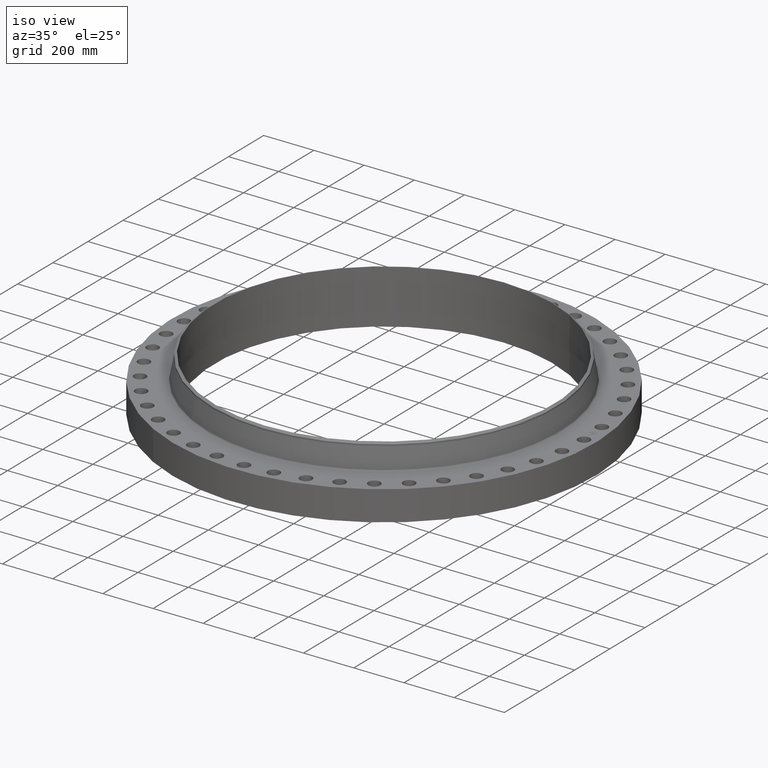
[diagram: clean part render]
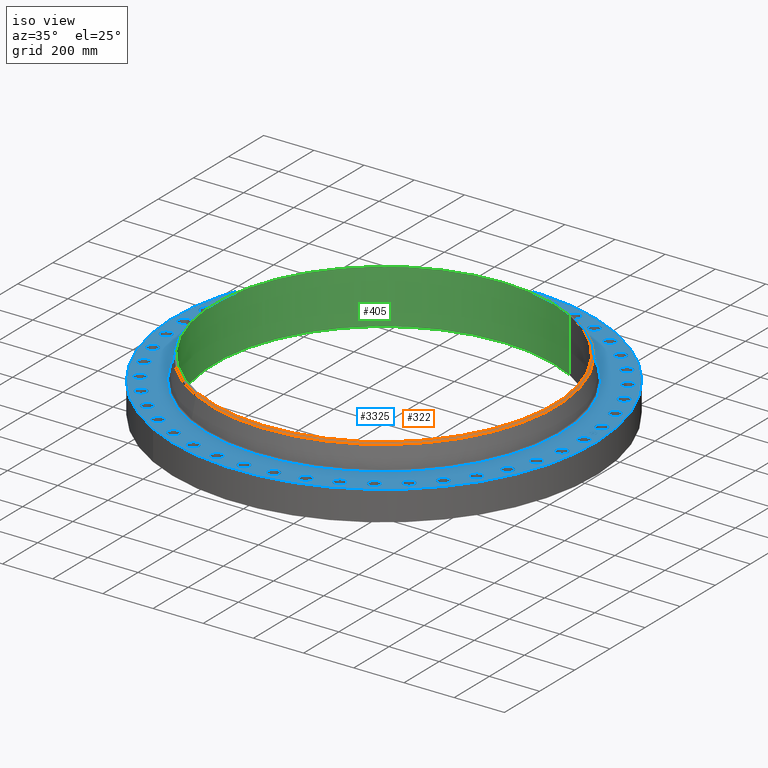
[diagram: same view with three faces highlighted in distinct colors, each labeled with its STEP entity id]
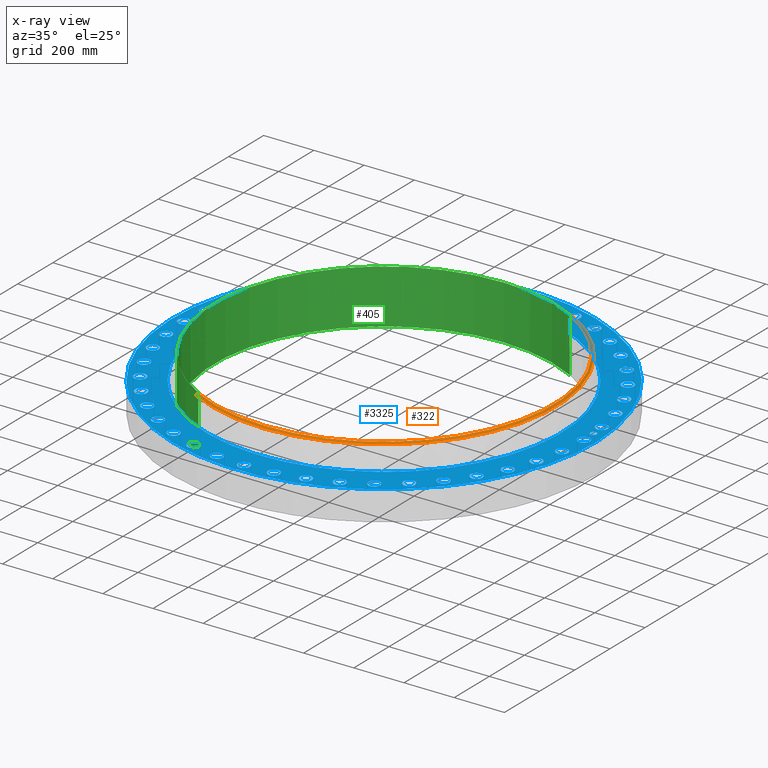
[diagram: x-ray of the same camera — body ghosted, the three highlighted faces saturated]
A machine part, iso view with three faces highlighted in distinct colors.
The next image is the same camera in x-ray (body ghosted, the three faces saturated) — at least one of them is partly hidden behind the body in this view.
Their STEP definitions:

[orange] entity #322 — the highlighted conical surface has half-angle 52.5 deg.
#270=AXIS2_PLACEMENT_3D('Circle Axis2P3D',#268,#269,$) ;
#295=AXIS2_PLACEMENT_3D('Cone Axis2P3D',#292,#293,#294) ;
#306=AXIS2_PLACEMENT_3D('Circle Axis2P3D',#304,#305,$) ;
#258=CARTESIAN_POINT('Vertex',(-12.9444895424,-23.6947291711,8.20021031629)) ;
#265=CARTESIAN_POINT('Vertex',(12.9444895424,23.6947291711,8.20021031629)) ;
#268=CARTESIAN_POINT('Axis2P3D Location',(0.,0.,8.20021031629)) ;
#292=CARTESIAN_POINT('Axis2P3D Location',(0.,0.,8.44000000003)) ;
#297=CARTESIAN_POINT('Line Origine',(12.869579302,23.5576068958,8.32010515816)) ;
#301=CARTESIAN_POINT('Vertex',(12.7946690616,23.4204846205,8.44000000003)) ;
#304=CARTESIAN_POINT('Axis2P3D Location',(0.,0.,8.44000000003)) ;
#308=CARTESIAN_POINT('Vertex',(-12.7946690616,-23.4204846205,8.44000000003)) ;
#311=CARTESIAN_POINT('Line Origine',(-12.869579302,-23.5576068958,8.32010515816)) ;
#269=DIRECTION('Axis2P3D Direction',(0.,0.,-0.0393700787402)) ;
#293=DIRECTION('Axis2P3D Direction',(-0.,-0.,-0.0393700787402)) ;
#294=DIRECTION('Axis2P3D XDirection',(-0.0188750212049,-0.0345504945626,0.)) ;
#298=DIRECTION('Vector Direction',(0.014974561121,0.02741075027,-0.023966985394)) ;
#305=DIRECTION('Axis2P3D Direction',(0.,-0.,-0.0393700787402)) ;
#312=DIRECTION('Vector Direction',(-0.014974561121,-0.02741075027,-0.023966985394)) ;
#299=VECTOR('Line Direction',#298,0.0393700787402) ;
#313=VECTOR('Line Direction',#312,0.0393700787402) ;
#317=ORIENTED_EDGE('',*,*,#303,.F.) ;
#318=ORIENTED_EDGE('',*,*,#310,.T.) ;
#319=ORIENTED_EDGE('',*,*,#315,.T.) ;
#320=ORIENTED_EDGE('',*,*,#272,.F.) ;
#322=ADVANCED_FACE('PartBody',(#321),#296,.T.) ;
#271=CIRCLE('generated circle',#270,27.0000000001) ;
#307=CIRCLE('generated circle',#306,26.6875000001) ;
#296=CONICAL_SURFACE('Cone',#295,26.6875000001,0.916297857297) ;
#272=EDGE_CURVE('',#266,#259,#271,.T.) ;
#303=EDGE_CURVE('',#302,#266,#300,.T.) ;
#310=EDGE_CURVE('',#302,#309,#307,.T.) ;
#315=EDGE_CURVE('',#309,#259,#314,.T.) ;
#316=EDGE_LOOP('',(#317,#318,#319,#320)) ;
#321=FACE_OUTER_BOUND('',#316,.T.) ;
#300=LINE('Line',#297,#299) ;
#314=LINE('Line',#311,#313) ;
#259=VERTEX_POINT('',#258) ;
#266=VERTEX_POINT('',#265) ;
#302=VERTEX_POINT('',#301) ;
#309=VERTEX_POINT('',#308) ;

[blue] entity #3325 — the highlighted planar face has unit normal (0, 0, -1).
#65=AXIS2_PLACEMENT_3D('Circle Axis2P3D',#63,#64,$) ;
#82=AXIS2_PLACEMENT_3D('Circle Axis2P3D',#80,#81,$) ;
#115=AXIS2_PLACEMENT_3D('Circle Axis2P3D',#113,#114,$) ;
#139=AXIS2_PLACEMENT_3D('Circle Axis2P3D',#137,#138,$) ;
#156=AXIS2_PLACEMENT_3D('Circle Axis2P3D',#154,#155,$) ;
#191=AXIS2_PLACEMENT_3D('Circle Axis2P3D',#189,#190,$) ;
#1290=AXIS2_PLACEMENT_3D('Circle Axis2P3D',#1288,#1289,$) ;
#1302=AXIS2_PLACEMENT_3D('Circle Axis2P3D',#1300,#1301,$) ;
#1333=AXIS2_PLACEMENT_3D('Circle Axis2P3D',#1331,#1332,$) ;
#1345=AXIS2_PLACEMENT_3D('Circle Axis2P3D',#1343,#1344,$) ;
#1376=AXIS2_PLACEMENT_3D('Circle Axis2P3D',#1374,#1375,$) ;
#1388=AXIS2_PLACEMENT_3D('Circle Axis2P3D',#1386,#1387,$) ;
#1419=AXIS2_PLACEMENT_3D('Circle Axis2P3D',#1417,#1418,$) ;
#1431=AXIS2_PLACEMENT_3D('Circle Axis2P3D',#1429,#1430,$) ;
#1462=AXIS2_PLACEMENT_3D('Circle Axis2P3D',#1460,#1461,$) ;
#1474=AXIS2_PLACEMENT_3D('Circle Axis2P3D',#1472,#1473,$) ;
#1505=AXIS2_PLACEMENT_3D('Circle Axis2P3D',#1503,#1504,$) ;
#1517=AXIS2_PLACEMENT_3D('Circle Axis2P3D',#1515,#1516,$) ;
#1548=AXIS2_PLACEMENT_3D('Circle Axis2P3D',#1546,#1547,$) ;
#1560=AXIS2_PLACEMENT_3D('Circle Axis2P3D',#1558,#1559,$) ;
#1591=AXIS2_PLACEMENT_3D('Circle Axis2P3D',#1589,#1590,$) ;
#1603=AXIS2_PLACEMENT_3D('Circle Axis2P3D',#1601,#1602,$) ;
#1634=AXIS2_PLACEMENT_3D('Circle Axis2P3D',#1632,#1633,$) ;
#1646=AXIS2_PLACEMENT_3D('Circle Axis2P3D',#1644,#1645,$) ;
#1677=AXIS2_PLACEMENT_3D('Circle Axis2P3D',#1675,#1676,$) ;
#1689=AXIS2_PLACEMENT_3D('Circle Axis2P3D',#1687,#1688,$) ;
#1720=AXIS2_PLACEMENT_3D('Circle Axis2P3D',#1718,#1719,$) ;
#1732=AXIS2_PLACEMENT_3D('Circle Axis2P3D',#1730,#1731,$) ;
#1763=AXIS2_PLACEMENT_3D('Circle Axis2P3D',#1761,#1762,$) ;
#1775=AXIS2_PLACEMENT_3D('Circle Axis2P3D',#1773,#1774,$) ;
#1806=AXIS2_PLACEMENT_3D('Circle Axis2P3D',#1804,#1805,$) ;
#1818=AXIS2_PLACEMENT_3D('Circle Axis2P3D',#1816,#1817,$) ;
#1849=AXIS2_PLACEMENT_3D('Circle Axis2P3D',#1847,#1848,$) ;
#1861=AXIS2_PLACEMENT_3D('Circle Axis2P3D',#1859,#1860,$) ;
#1892=AXIS2_PLACEMENT_3D('Circle Axis2P3D',#1890,#1891,$) ;
#1904=AXIS2_PLACEMENT_3D('Circle Axis2P3D',#1902,#1903,$) ;
#1935=AXIS2_PLACEMENT_3D('Circle Axis2P3D',#1933,#1934,$) ;
#1947=AXIS2_PLACEMENT_3D('Circle Axis2P3D',#1945,#1946,$) ;
#1978=AXIS2_PLACEMENT_3D('Circle Axis2P3D',#1976,#1977,$) ;
#1990=AXIS2_PLACEMENT_3D('Circle Axis2P3D',#1988,#1989,$) ;
#2021=AXIS2_PLACEMENT_3D('Circle Axis2P3D',#2019,#2020,$) ;
#2033=AXIS2_PLACEMENT_3D('Circle Axis2P3D',#2031,#2032,$) ;
#2064=AXIS2_PLACEMENT_3D('Circle Axis2P3D',#2062,#2063,$) ;
#2076=AXIS2_PLACEMENT_3D('Circle Axis2P3D',#2074,#2075,$) ;
#2107=AXIS2_PLACEMENT_3D('Circle Axis2P3D',#2105,#2106,$) ;
#2119=AXIS2_PLACEMENT_3D('Circle Axis2P3D',#2117,#2118,$) ;
#2150=AXIS2_PLACEMENT_3D('Circle Axis2P3D',#2148,#2149,$) ;
#2162=AXIS2_PLACEMENT_3D('Circle Axis2P3D',#2160,#2161,$) ;
#2193=AXIS2_PLACEMENT_3D('Circle Axis2P3D',#2191,#2192,$) ;
#2205=AXIS2_PLACEMENT_3D('Circle Axis2P3D',#2203,#2204,$) ;
#2236=AXIS2_PLACEMENT_3D('Circle Axis2P3D',#2234,#2235,$) ;
#2248=AXIS2_PLACEMENT_3D('Circle Axis2P3D',#2246,#2247,$) ;
#2279=AXIS2_PLACEMENT_3D('Circle Axis2P3D',#2277,#2278,$) ;
#2291=AXIS2_PLACEMENT_3D('Circle Axis2P3D',#2289,#2290,$) ;
#2322=AXIS2_PLACEMENT_3D('Circle Axis2P3D',#2320,#2321,$) ;
#2334=AXIS2_PLACEMENT_3D('Circle Axis2P3D',#2332,#2333,$) ;
#2365=AXIS2_PLACEMENT_3D('Circle Axis2P3D',#2363,#2364,$) ;
#2377=AXIS2_PLACEMENT_3D('Circle Axis2P3D',#2375,#2376,$) ;
#2408=AXIS2_PLACEMENT_3D('Circle Axis2P3D',#2406,#2407,$) ;
#2420=AXIS2_PLACEMENT_3D('Circle Axis2P3D',#2418,#2419,$) ;
#2451=AXIS2_PLACEMENT_3D('Circle Axis2P3D',#2449,#2450,$) ;
#2463=AXIS2_PLACEMENT_3D('Circle Axis2P3D',#2461,#2462,$) ;
#2494=AXIS2_PLACEMENT_3D('Circle Axis2P3D',#2492,#2493,$) ;
#2506=AXIS2_PLACEMENT_3D('Circle Axis2P3D',#2504,#2505,$) ;
#2537=AXIS2_PLACEMENT_3D('Circle Axis2P3D',#2535,#2536,$) ;
#2549=AXIS2_PLACEMENT_3D('Circle Axis2P3D',#2547,#2548,$) ;
#2580=AXIS2_PLACEMENT_3D('Circle Axis2P3D',#2578,#2579,$) ;
#2592=AXIS2_PLACEMENT_3D('Circle Axis2P3D',#2590,#2591,$) ;
#2623=AXIS2_PLACEMENT_3D('Circle Axis2P3D',#2621,#2622,$) ;
#2635=AXIS2_PLACEMENT_3D('Circle Axis2P3D',#2633,#2634,$) ;
#2666=AXIS2_PLACEMENT_3D('Circle Axis2P3D',#2664,#2665,$) ;
#2678=AXIS2_PLACEMENT_3D('Circle Axis2P3D',#2676,#2677,$) ;
#2709=AXIS2_PLACEMENT_3D('Circle Axis2P3D',#2707,#2708,$) ;
#2721=AXIS2_PLACEMENT_3D('Circle Axis2P3D',#2719,#2720,$) ;
#2752=AXIS2_PLACEMENT_3D('Circle Axis2P3D',#2750,#2751,$) ;
#2764=AXIS2_PLACEMENT_3D('Circle Axis2P3D',#2762,#2763,$) ;
#2795=AXIS2_PLACEMENT_3D('Circle Axis2P3D',#2793,#2794,$) ;
#2807=AXIS2_PLACEMENT_3D('Circle Axis2P3D',#2805,#2806,$) ;
#2838=AXIS2_PLACEMENT_3D('Circle Axis2P3D',#2836,#2837,$) ;
#2850=AXIS2_PLACEMENT_3D('Circle Axis2P3D',#2848,#2849,$) ;
#2881=AXIS2_PLACEMENT_3D('Circle Axis2P3D',#2879,#2880,$) ;
#2893=AXIS2_PLACEMENT_3D('Circle Axis2P3D',#2891,#2892,$) ;
#2924=AXIS2_PLACEMENT_3D('Circle Axis2P3D',#2922,#2923,$) ;
#2936=AXIS2_PLACEMENT_3D('Circle Axis2P3D',#2934,#2935,$) ;
#2967=AXIS2_PLACEMENT_3D('Circle Axis2P3D',#2965,#2966,$) ;
#2979=AXIS2_PLACEMENT_3D('Circle Axis2P3D',#2977,#2978,$) ;
#3010=AXIS2_PLACEMENT_3D('Circle Axis2P3D',#3008,#3009,$) ;
#3022=AXIS2_PLACEMENT_3D('Circle Axis2P3D',#3020,#3021,$) ;
#3053=AXIS2_PLACEMENT_3D('Circle Axis2P3D',#3051,#3052,$) ;
#3065=AXIS2_PLACEMENT_3D('Circle Axis2P3D',#3063,#3064,$) ;
#3096=AXIS2_PLACEMENT_3D('Circle Axis2P3D',#3094,#3095,$) ;
#3108=AXIS2_PLACEMENT_3D('Circle Axis2P3D',#3106,#3107,$) ;
#3121=AXIS2_PLACEMENT_3D('Plane Axis2P3D',#3118,#3119,#3120) ;
#3309=AXIS2_PLACEMENT_3D('Circle Axis2P3D',#3307,#3308,$) ;
#3318=AXIS2_PLACEMENT_3D('Circle Axis2P3D',#3316,#3317,$) ;
#46=CARTESIAN_POINT('Vertex',(30.5500723919,0.45066000629,4.69000000002)) ;
#60=CARTESIAN_POINT('Vertex',(32.1999276083,-0.45066000629,4.69000000002)) ;
#63=CARTESIAN_POINT('Axis2P3D Location',(31.3750000001,0.,4.69000000002)) ;
#80=CARTESIAN_POINT('Axis2P3D Location',(31.3750000001,0.,4.69000000002)) ;
#110=CARTESIAN_POINT('Vertex',(-15.8809709663,-29.0699223627,4.69000000002)) ;
#113=CARTESIAN_POINT('Axis2P3D Location',(0.,0.,4.69000000002)) ;
#117=CARTESIAN_POINT('Vertex',(15.8809709663,29.0699223627,4.69000000002)) ;
#137=CARTESIAN_POINT('Axis2P3D Location',(0.,0.,4.69000000002)) ;
#154=CARTESIAN_POINT('Axis2P3D Location',(0.,0.,4.69000000002)) ;
#158=CARTESIAN_POINT('Vertex',(13.3432708524,24.4246934627,4.69000000002)) ;
#160=CARTESIAN_POINT('Vertex',(-13.3432708524,-24.4246934627,4.69000000002)) ;
#189=CARTESIAN_POINT('Axis2P3D Location',(0.,0.,4.69000000002)) ;
#1278=CARTESIAN_POINT('Vertex',(-30.3032523105,3.90165567447,4.69000000002)) ;
#1285=CARTESIAN_POINT('Vertex',(-31.8080431678,5.02860042721,4.69000000002)) ;
#1288=CARTESIAN_POINT('Axis2P3D Location',(-31.0556477391,4.46512805084,4.69000000002)) ;
#1300=CARTESIAN_POINT('Axis2P3D Location',(-31.0556477391,4.46512805084,4.69000000002)) ;
#1321=CARTESIAN_POINT('Vertex',(29.4395453993,-8.17454489715,4.69000000002)) ;
#1328=CARTESIAN_POINT('Vertex',(30.7686386952,-9.50417304472,4.69000000002)) ;
#1331=CARTESIAN_POINT('Axis2P3D Location',(30.1040920473,-8.83935897094,4.69000000002)) ;
#1343=CARTESIAN_POINT('Axis2P3D Location',(30.1040920473,-8.83935897094,4.69000000002)) ;
#1364=CARTESIAN_POINT('Vertex',(-29.4395453993,8.17454489715,4.69000000002)) ;
#1371=CARTESIAN_POINT('Vertex',(-30.7686386952,9.50417304472,4.69000000002)) ;
#1374=CARTESIAN_POINT('Axis2P3D Location',(-30.1040920473,8.83935897094,4.69000000002)) ;
#1386=CARTESIAN_POINT('Axis2P3D Location',(-30.1040920473,8.83935897094,4.69000000002)) ;
#1407=CARTESIAN_POINT('Vertex',(27.9765342405,-12.2810239592,4.69000000002)) ;
#1414=CARTESIAN_POINT('Vertex',(29.1028734682,-13.7862681068,4.69000000002)) ;
#1417=CARTESIAN_POINT('Axis2P3D Location',(28.5397038544,-13.033646033,4.69000000002)) ;
#1429=CARTESIAN_POINT('Axis2P3D Location',(28.5397038544,-13.033646033,4.69000000002)) ;
#1450=CARTESIAN_POINT('Vertex',(-27.9765342405,12.2810239592,4.69000000002)) ;
#1457=CARTESIAN_POINT('Vertex',(-29.1028734682,13.7862681068,4.69000000002)) ;
#1460=CARTESIAN_POINT('Axis2P3D Location',(-28.5397038544,13.033646033,4.69000000002)) ;
#1472=CARTESIAN_POINT('Axis2P3D Location',(-28.5397038544,13.033646033,4.69000000002)) ;
#1493=CARTESIAN_POINT('Vertex',(25.9440015222,-16.1374967889,4.69000000002)) ;
#1500=CARTESIAN_POINT('Vertex',(26.8446576632,-17.7877145066,4.69000000002)) ;
#1503=CARTESIAN_POINT('Axis2P3D Location',(26.3943295927,-16.9626056477,4.69000000002)) ;
#1515=CARTESIAN_POINT('Axis2P3D Location',(26.3943295927,-16.9626056477,4.69000000002)) ;
#1536=CARTESIAN_POINT('Vertex',(-25.9440015222,16.1374967889,4.69000000002)) ;
#1543=CARTESIAN_POINT('Vertex',(-26.8446576632,17.7877145066,4.69000000002)) ;
#1546=CARTESIAN_POINT('Axis2P3D Location',(-26.3943295927,16.9626056477,4.69000000002)) ;
#1558=CARTESIAN_POINT('Axis2P3D Location',(-26.3943295927,16.9626056477,4.69000000002)) ;
#1579=CARTESIAN_POINT('Vertex',(23.3833237492,-19.6654567207,4.69000000002)) ;
#1586=CARTESIAN_POINT('Vertex',(24.0399620417,-21.4270543345,4.69000000002)) ;
#1589=CARTESIAN_POINT('Axis2P3D Location',(23.7116428955,-20.5462555276,4.69000000002)) ;
#1601=CARTESIAN_POINT('Axis2P3D Location',(23.7116428955,-20.5462555276,4.69000000002)) ;
#1622=CARTESIAN_POINT('Vertex',(-23.3833237492,19.6654567207,4.69000000002)) ;
#1629=CARTESIAN_POINT('Vertex',(-24.0399620417,21.4270543345,4.69000000002)) ;
#1632=CARTESIAN_POINT('Axis2P3D Location',(-23.7116428955,20.5462555276,4.69000000002)) ;
#1644=CARTESIAN_POINT('Axis2P3D Location',(-23.7116428955,20.5462555276,4.69000000002)) ;
#1665=CARTESIAN_POINT('Vertex',(20.3466289366,-22.7930846642,4.69000000002)) ;
#1672=CARTESIAN_POINT('Vertex',(20.7458821186,-24.6302011267,4.69000000002)) ;
#1675=CARTESIAN_POINT('Axis2P3D Location',(20.5462555276,-23.7116428955,4.69000000002)) ;
#1687=CARTESIAN_POINT('Axis2P3D Location',(20.5462555276,-23.7116428955,4.69000000002)) ;
#1708=CARTESIAN_POINT('Vertex',(-20.3466289366,22.7930846642,4.69000000002)) ;
#1715=CARTESIAN_POINT('Vertex',(-20.7458821186,24.6302011267,4.69000000002)) ;
#1718=CARTESIAN_POINT('Axis2P3D Location',(-20.5462555276,23.7116428955,4.69000000002)) ;
#1730=CARTESIAN_POINT('Axis2P3D Location',(-20.5462555276,23.7116428955,4.69000000002)) ;
#1751=CARTESIAN_POINT('Vertex',(16.8957354337,-25.4567111338,4.69000000002)) ;
#1758=CARTESIAN_POINT('Vertex',(17.0294758618,-27.3319480516,4.69000000002)) ;
#1761=CARTESIAN_POINT('Axis2P3D Location',(16.9626056477,-26.3943295927,4.69000000002)) ;
#1773=CARTESIAN_POINT('Axis2P3D Location',(16.9626056477,-26.3943295927,4.69000000002)) ;
#1794=CARTESIAN_POINT('Vertex',(-16.8957354337,25.4567111338,4.69000000002)) ;
#1801=CARTESIAN_POINT('Vertex',(-17.0294758618,27.3319480516,4.69000000002)) ;
#1804=CARTESIAN_POINT('Axis2P3D Location',(-16.9626056477,26.3943295927,4.69000000002)) ;
#1816=CARTESIAN_POINT('Axis2P3D Location',(-16.9626056477,26.3943295927,4.69000000002)) ;
#1837=CARTESIAN_POINT('Vertex',(13.1008934807,-27.6021123757,4.69000000002)) ;
#1844=CARTESIAN_POINT('Vertex',(12.9663985853,-29.477295333,4.69000000002)) ;
#1847=CARTESIAN_POINT('Axis2P3D Location',(13.033646033,-28.5397038544,4.69000000002)) ;
#1859=CARTESIAN_POINT('Axis2P3D Location',(13.033646033,-28.5397038544,4.69000000002)) ;
#1880=CARTESIAN_POINT('Vertex',(-13.1008934807,27.6021123757,4.69000000002)) ;
#1887=CARTESIAN_POINT('Vertex',(-12.9663985853,29.477295333,4.69000000002)) ;
#1890=CARTESIAN_POINT('Axis2P3D Location',(-13.033646033,28.5397038544,4.69000000002)) ;
#1902=CARTESIAN_POINT('Axis2P3D Location',(-13.033646033,28.5397038544,4.69000000002)) ;
#1923=CARTESIAN_POINT('Vertex',(9.0393551162,-29.1856142076,4.69000000002)) ;
#1930=CARTESIAN_POINT('Vertex',(8.63936282567,-31.0225698869,4.69000000002)) ;
#1933=CARTESIAN_POINT('Axis2P3D Location',(8.83935897094,-30.1040920473,4.69000000002)) ;
#1945=CARTESIAN_POINT('Axis2P3D Location',(8.83935897094,-30.1040920473,4.69000000002)) ;
#1966=CARTESIAN_POINT('Vertex',(-9.0393551162,29.1856142076,4.69000000002)) ;
#1973=CARTESIAN_POINT('Vertex',(-8.63936282567,31.0225698869,4.69000000002)) ;
#1976=CARTESIAN_POINT('Axis2P3D Location',(-8.83935897094,30.1040920473,4.69000000002)) ;
#1988=CARTESIAN_POINT('Axis2P3D Location',(-8.83935897094,30.1040920473,4.69000000002)) ;
#2009=CARTESIAN_POINT('Vertex',(4.79380154892,-30.1749810987,4.69000000002)) ;
#2016=CARTESIAN_POINT('Vertex',(4.13645455276,-31.9363143796,4.69000000002)) ;
#2019=CARTESIAN_POINT('Axis2P3D Location',(4.46512805084,-31.0556477391,4.69000000002)) ;
#2031=CARTESIAN_POINT('Axis2P3D Location',(4.46512805084,-31.0556477391,4.69000000002)) ;
#2052=CARTESIAN_POINT('Vertex',(-4.79380154892,30.1749810987,4.69000000002)) ;
#2059=CARTESIAN_POINT('Vertex',(-4.13645455276,31.9363143796,4.69000000002)) ;
#2062=CARTESIAN_POINT('Axis2P3D Location',(-4.46512805084,31.0556477391,4.69000000002)) ;
#2074=CARTESIAN_POINT('Axis2P3D Location',(-4.46512805084,31.0556477391,4.69000000002)) ;
#2095=CARTESIAN_POINT('Vertex',(0.45066000629,-30.5500723919,4.69000000002)) ;
#2102=CARTESIAN_POINT('Vertex',(-0.45066000629,-32.1999276083,4.69000000002)) ;
#2105=CARTESIAN_POINT('Axis2P3D Location',(-2.55469508665E-015,-31.3750000001,4.69000000002)) ;
#2117=CARTESIAN_POINT('Axis2P3D Location',(-2.55469508665E-015,-31.3750000001,4.69000000002)) ;
#2138=CARTESIAN_POINT('Vertex',(-0.45066000629,30.5500723919,4.69000000002)) ;
#2145=CARTESIAN_POINT('Vertex',(0.45066000629,32.1999276083,4.69000000002)) ;
#2148=CARTESIAN_POINT('Axis2P3D Location',(-1.28763424569E-015,31.3750000001,4.69000000002)) ;
#2160=CARTESIAN_POINT('Axis2P3D Location',(-1.28763424569E-015,31.3750000001,4.69000000002)) ;
#2181=CARTESIAN_POINT('Vertex',(-3.90165567447,-30.3032523105,4.69000000002)) ;
#2188=CARTESIAN_POINT('Vertex',(-5.02860042721,-31.8080431678,4.69000000002)) ;
#2191=CARTESIAN_POINT('Axis2P3D Location',(-4.46512805084,-31.0556477391,4.69000000002)) ;
#2203=CARTESIAN_POINT('Axis2P3D Location',(-4.46512805084,-31.0556477391,4.69000000002)) ;
#2224=CARTESIAN_POINT('Vertex',(3.90165567447,30.3032523105,4.69000000002)) ;
#2231=CARTESIAN_POINT('Vertex',(5.02860042721,31.8080431678,4.69000000002)) ;
#2234=CARTESIAN_POINT('Axis2P3D Location',(4.46512805084,31.0556477391,4.69000000002)) ;
#2246=CARTESIAN_POINT('Axis2P3D Location',(4.46512805084,31.0556477391,4.69000000002)) ;
#2267=CARTESIAN_POINT('Vertex',(-8.17454489715,-29.4395453993,4.69000000002)) ;
#2274=CARTESIAN_POINT('Vertex',(-9.50417304472,-30.7686386952,4.69000000002)) ;
#2277=CARTESIAN_POINT('Axis2P3D Location',(-8.83935897094,-30.1040920473,4.69000000002)) ;
#2289=CARTESIAN_POINT('Axis2P3D Location',(-8.83935897094,-30.1040920473,4.69000000002)) ;
#2310=CARTESIAN_POINT('Vertex',(8.17454489715,29.4395453993,4.69000000002)) ;
#2317=CARTESIAN_POINT('Vertex',(9.50417304472,30.7686386952,4.69000000002)) ;
#2320=CARTESIAN_POINT('Axis2P3D Location',(8.83935897094,30.1040920473,4.69000000002)) ;
#2332=CARTESIAN_POINT('Axis2P3D Location',(8.83935897094,30.1040920473,4.69000000002)) ;
#2353=CARTESIAN_POINT('Vertex',(-12.2810239592,-27.9765342405,4.69000000002)) ;
#2360=CARTESIAN_POINT('Vertex',(-13.7862681068,-29.1028734682,4.69000000002)) ;
#2363=CARTESIAN_POINT('Axis2P3D Location',(-13.033646033,-28.5397038544,4.69000000002)) ;
#2375=CARTESIAN_POINT('Axis2P3D Location',(-13.033646033,-28.5397038544,4.69000000002)) ;
#2396=CARTESIAN_POINT('Vertex',(12.2810239592,27.9765342405,4.69000000002)) ;
#2403=CARTESIAN_POINT('Vertex',(13.7862681068,29.1028734682,4.69000000002)) ;
#2406=CARTESIAN_POINT('Axis2P3D Location',(13.033646033,28.5397038544,4.69000000002)) ;
#2418=CARTESIAN_POINT('Axis2P3D Location',(13.033646033,28.5397038544,4.69000000002)) ;
#2439=CARTESIAN_POINT('Vertex',(-16.1374967889,-25.9440015222,4.69000000002)) ;
#2446=CARTESIAN_POINT('Vertex',(-17.7877145066,-26.8446576632,4.69000000002)) ;
#2449=CARTESIAN_POINT('Axis2P3D Location',(-16.9626056477,-26.3943295927,4.69000000002)) ;
#2461=CARTESIAN_POINT('Axis2P3D Location',(-16.9626056477,-26.3943295927,4.69000000002)) ;
#2482=CARTESIAN_POINT('Vertex',(16.1374967889,25.9440015222,4.69000000002)) ;
#2489=CARTESIAN_POINT('Vertex',(17.7877145066,26.8446576632,4.69000000002)) ;
#2492=CARTESIAN_POINT('Axis2P3D Location',(16.9626056477,26.3943295927,4.69000000002)) ;
#2504=CARTESIAN_POINT('Axis2P3D Location',(16.9626056477,26.3943295927,4.69000000002)) ;
#2525=CARTESIAN_POINT('Vertex',(-19.6654567207,-23.3833237492,4.69000000002)) ;
#2532=CARTESIAN_POINT('Vertex',(-21.4270543345,-24.0399620417,4.69000000002)) ;
#2535=CARTESIAN_POINT('Axis2P3D Location',(-20.5462555276,-23.7116428955,4.69000000002)) ;
#2547=CARTESIAN_POINT('Axis2P3D Location',(-20.5462555276,-23.7116428955,4.69000000002)) ;
#2568=CARTESIAN_POINT('Vertex',(19.6654567207,23.3833237492,4.69000000002)) ;
#2575=CARTESIAN_POINT('Vertex',(21.4270543345,24.0399620417,4.69000000002)) ;
#2578=CARTESIAN_POINT('Axis2P3D Location',(20.5462555276,23.7116428955,4.69000000002)) ;
#2590=CARTESIAN_POINT('Axis2P3D Location',(20.5462555276,23.7116428955,4.69000000002)) ;
#2611=CARTESIAN_POINT('Vertex',(-22.7930846642,-20.3466289366,4.69000000002)) ;
#2618=CARTESIAN_POINT('Vertex',(-24.6302011267,-20.7458821186,4.69000000002)) ;
#2621=CARTESIAN_POINT('Axis2P3D Location',(-23.7116428955,-20.5462555276,4.69000000002)) ;
#2633=CARTESIAN_POINT('Axis2P3D Location',(-23.7116428955,-20.5462555276,4.69000000002)) ;
#2654=CARTESIAN_POINT('Vertex',(22.7930846642,20.3466289366,4.69000000002)) ;
#2661=CARTESIAN_POINT('Vertex',(24.6302011267,20.7458821186,4.69000000002)) ;
#2664=CARTESIAN_POINT('Axis2P3D Location',(23.7116428955,20.5462555276,4.69000000002)) ;
#2676=CARTESIAN_POINT('Axis2P3D Location',(23.7116428955,20.5462555276,4.69000000002)) ;
#2697=CARTESIAN_POINT('Vertex',(-25.4567111338,-16.8957354337,4.69000000002)) ;
#2704=CARTESIAN_POINT('Vertex',(-27.3319480516,-17.0294758618,4.69000000002)) ;
#2707=CARTESIAN_POINT('Axis2P3D Location',(-26.3943295927,-16.9626056477,4.69000000002)) ;
#2719=CARTESIAN_POINT('Axis2P3D Location',(-26.3943295927,-16.9626056477,4.69000000002)) ;
#2740=CARTESIAN_POINT('Vertex',(25.4567111338,16.8957354337,4.69000000002)) ;
#2747=CARTESIAN_POINT('Vertex',(27.3319480516,17.0294758618,4.69000000002)) ;
#2750=CARTESIAN_POINT('Axis2P3D Location',(26.3943295927,16.9626056477,4.69000000002)) ;
#2762=CARTESIAN_POINT('Axis2P3D Location',(26.3943295927,16.9626056477,4.69000000002)) ;
#2783=CARTESIAN_POINT('Vertex',(-27.6021123757,-13.1008934807,4.69000000002)) ;
#2790=CARTESIAN_POINT('Vertex',(-29.477295333,-12.9663985853,4.69000000002)) ;
#2793=CARTESIAN_POINT('Axis2P3D Location',(-28.5397038544,-13.033646033,4.69000000002)) ;
#2805=CARTESIAN_POINT('Axis2P3D Location',(-28.5397038544,-13.033646033,4.69000000002)) ;
#2826=CARTESIAN_POINT('Vertex',(27.6021123757,13.1008934807,4.69000000002)) ;
#2833=CARTESIAN_POINT('Vertex',(29.477295333,12.9663985853,4.69000000002)) ;
#2836=CARTESIAN_POINT('Axis2P3D Location',(28.5397038544,13.033646033,4.69000000002)) ;
#2848=CARTESIAN_POINT('Axis2P3D Location',(28.5397038544,13.033646033,4.69000000002)) ;
#2869=CARTESIAN_POINT('Vertex',(-29.1856142076,-9.0393551162,4.69000000002)) ;
#2876=CARTESIAN_POINT('Vertex',(-31.0225698869,-8.63936282567,4.69000000002)) ;
#2879=CARTESIAN_POINT('Axis2P3D Location',(-30.1040920473,-8.83935897094,4.69000000002)) ;
#2891=CARTESIAN_POINT('Axis2P3D Location',(-30.1040920473,-8.83935897094,4.69000000002)) ;
#2912=CARTESIAN_POINT('Vertex',(29.1856142076,9.0393551162,4.69000000002)) ;
#2919=CARTESIAN_POINT('Vertex',(31.0225698869,8.63936282567,4.69000000002)) ;
#2922=CARTESIAN_POINT('Axis2P3D Location',(30.1040920473,8.83935897094,4.69000000002)) ;
#2934=CARTESIAN_POINT('Axis2P3D Location',(30.1040920473,8.83935897094,4.69000000002)) ;
#2955=CARTESIAN_POINT('Vertex',(-30.1749810987,-4.79380154892,4.69000000002)) ;
#2962=CARTESIAN_POINT('Vertex',(-31.9363143796,-4.13645455276,4.69000000002)) ;
#2965=CARTESIAN_POINT('Axis2P3D Location',(-31.0556477391,-4.46512805084,4.69000000002)) ;
#2977=CARTESIAN_POINT('Axis2P3D Location',(-31.0556477391,-4.46512805084,4.69000000002)) ;
#2998=CARTESIAN_POINT('Vertex',(30.1749810987,4.79380154892,4.69000000002)) ;
#3005=CARTESIAN_POINT('Vertex',(31.9363143796,4.13645455276,4.69000000002)) ;
#3008=CARTESIAN_POINT('Axis2P3D Location',(31.0556477391,4.46512805084,4.69000000002)) ;
#3020=CARTESIAN_POINT('Axis2P3D Location',(31.0556477391,4.46512805084,4.69000000002)) ;
#3041=CARTESIAN_POINT('Vertex',(-30.5500723919,-0.45066000629,4.69000000002)) ;
#3048=CARTESIAN_POINT('Vertex',(-32.1999276083,0.45066000629,4.69000000002)) ;
#3051=CARTESIAN_POINT('Axis2P3D Location',(-31.3750000001,-3.84232933234E-015,4.69000000002)) ;
#3063=CARTESIAN_POINT('Axis2P3D Location',(-31.3750000001,-3.84232933234E-015,4.69000000002)) ;
#3084=CARTESIAN_POINT('Vertex',(30.3032523105,-3.90165567447,4.69000000002)) ;
#3091=CARTESIAN_POINT('Vertex',(31.8080431678,-5.02860042721,4.69000000002)) ;
#3094=CARTESIAN_POINT('Axis2P3D Location',(31.0556477391,-4.46512805084,4.69000000002)) ;
#3106=CARTESIAN_POINT('Axis2P3D Location',(31.0556477391,-4.46512805084,4.69000000002)) ;
#3118=CARTESIAN_POINT('Axis2P3D Location',(0.,33.1250000001,4.69000000002)) ;
#3307=CARTESIAN_POINT('Axis2P3D Location',(31.295060096,2.23826687288,4.69000000002)) ;
#3311=CARTESIAN_POINT('Vertex',(31.2593905862,2.73699178711,4.69000000002)) ;
#3313=CARTESIAN_POINT('Vertex',(31.3307296059,1.73954195866,4.69000000002)) ;
#3316=CARTESIAN_POINT('Axis2P3D Location',(31.295060096,2.23826687288,4.69000000002)) ;
#64=DIRECTION('Axis2P3D Direction',(0.,-0.,-0.0393700787402)) ;
#81=DIRECTION('Axis2P3D Direction',(0.,-0.,-0.0393700787402)) ;
#114=DIRECTION('Axis2P3D Direction',(0.,0.,-0.0393700787402)) ;
#138=DIRECTION('Axis2P3D Direction',(0.,0.,-0.0393700787402)) ;
#155=DIRECTION('Axis2P3D Direction',(0.,0.,-0.0393700787402)) ;
#190=DIRECTION('Axis2P3D Direction',(0.,0.,-0.0393700787402)) ;
#1289=DIRECTION('Axis2P3D Direction',(0.,0.,-0.0393700787402)) ;
#1301=DIRECTION('Axis2P3D Direction',(0.,0.,-0.0393700787402)) ;
#1332=DIRECTION('Axis2P3D Direction',(0.,-0.,-0.0393700787402)) ;
#1344=DIRECTION('Axis2P3D Direction',(0.,-0.,-0.0393700787402)) ;
#1375=DIRECTION('Axis2P3D Direction',(0.,0.,-0.0393700787402)) ;
#1387=DIRECTION('Axis2P3D Direction',(0.,0.,-0.0393700787402)) ;
#1418=DIRECTION('Axis2P3D Direction',(0.,-0.,-0.0393700787402)) ;
#1430=DIRECTION('Axis2P3D Direction',(0.,-0.,-0.0393700787402)) ;
#1461=DIRECTION('Axis2P3D Direction',(0.,0.,-0.0393700787402)) ;
#1473=DIRECTION('Axis2P3D Direction',(0.,0.,-0.0393700787402)) ;
#1504=DIRECTION('Axis2P3D Direction',(0.,-0.,-0.0393700787402)) ;
#1516=DIRECTION('Axis2P3D Direction',(0.,-0.,-0.0393700787402)) ;
#1547=DIRECTION('Axis2P3D Direction',(0.,0.,-0.0393700787402)) ;
#1559=DIRECTION('Axis2P3D Direction',(0.,0.,-0.0393700787402)) ;
#1590=DIRECTION('Axis2P3D Direction',(0.,-0.,-0.0393700787402)) ;
#1602=DIRECTION('Axis2P3D Direction',(0.,-0.,-0.0393700787402)) ;
#1633=DIRECTION('Axis2P3D Direction',(0.,0.,-0.0393700787402)) ;
#1645=DIRECTION('Axis2P3D Direction',(0.,0.,-0.0393700787402)) ;
#1676=DIRECTION('Axis2P3D Direction',(0.,-0.,-0.0393700787402)) ;
#1688=DIRECTION('Axis2P3D Direction',(0.,-0.,-0.0393700787402)) ;
#1719=DIRECTION('Axis2P3D Direction',(0.,0.,-0.0393700787402)) ;
#1731=DIRECTION('Axis2P3D Direction',(0.,0.,-0.0393700787402)) ;
#1762=DIRECTION('Axis2P3D Direction',(0.,-0.,-0.0393700787402)) ;
#1774=DIRECTION('Axis2P3D Direction',(0.,-0.,-0.0393700787402)) ;
#1805=DIRECTION('Axis2P3D Direction',(0.,0.,-0.0393700787402)) ;
#1817=DIRECTION('Axis2P3D Direction',(0.,0.,-0.0393700787402)) ;
#1848=DIRECTION('Axis2P3D Direction',(0.,-0.,-0.0393700787402)) ;
#1860=DIRECTION('Axis2P3D Direction',(0.,-0.,-0.0393700787402)) ;
#1891=DIRECTION('Axis2P3D Direction',(0.,0.,-0.0393700787402)) ;
#1903=DIRECTION('Axis2P3D Direction',(0.,0.,-0.0393700787402)) ;
#1934=DIRECTION('Axis2P3D Direction',(0.,-0.,-0.0393700787402)) ;
#1946=DIRECTION('Axis2P3D Direction',(0.,-0.,-0.0393700787402)) ;
#1977=DIRECTION('Axis2P3D Direction',(0.,0.,-0.0393700787402)) ;
#1989=DIRECTION('Axis2P3D Direction',(0.,0.,-0.0393700787402)) ;
#2020=DIRECTION('Axis2P3D Direction',(0.,-0.,-0.0393700787402)) ;
#2032=DIRECTION('Axis2P3D Direction',(0.,-0.,-0.0393700787402)) ;
#2063=DIRECTION('Axis2P3D Direction',(0.,0.,-0.0393700787402)) ;
#2075=DIRECTION('Axis2P3D Direction',(0.,0.,-0.0393700787402)) ;
#2106=DIRECTION('Axis2P3D Direction',(0.,-0.,-0.0393700787402)) ;
#2118=DIRECTION('Axis2P3D Direction',(0.,-0.,-0.0393700787402)) ;
#2149=DIRECTION('Axis2P3D Direction',(0.,0.,-0.0393700787402)) ;
#2161=DIRECTION('Axis2P3D Direction',(0.,0.,-0.0393700787402)) ;
#2192=DIRECTION('Axis2P3D Direction',(-0.,0.,-0.0393700787402)) ;
#2204=DIRECTION('Axis2P3D Direction',(-0.,0.,-0.0393700787402)) ;
#2235=DIRECTION('Axis2P3D Direction',(0.,0.,-0.0393700787402)) ;
#2247=DIRECTION('Axis2P3D Direction',(0.,0.,-0.0393700787402)) ;
#2278=DIRECTION('Axis2P3D Direction',(-0.,0.,-0.0393700787402)) ;
#2290=DIRECTION('Axis2P3D Direction',(-0.,0.,-0.0393700787402)) ;
#2321=DIRECTION('Axis2P3D Direction',(0.,0.,-0.0393700787402)) ;
#2333=DIRECTION('Axis2P3D Direction',(0.,0.,-0.0393700787402)) ;
#2364=DIRECTION('Axis2P3D Direction',(-0.,0.,-0.0393700787402)) ;
#2376=DIRECTION('Axis2P3D Direction',(-0.,0.,-0.0393700787402)) ;
#2407=DIRECTION('Axis2P3D Direction',(0.,0.,-0.0393700787402)) ;
#2419=DIRECTION('Axis2P3D Direction',(0.,0.,-0.0393700787402)) ;
#2450=DIRECTION('Axis2P3D Direction',(-0.,0.,-0.0393700787402)) ;
#2462=DIRECTION('Axis2P3D Direction',(-0.,0.,-0.0393700787402)) ;
#2493=DIRECTION('Axis2P3D Direction',(0.,0.,-0.0393700787402)) ;
#2505=DIRECTION('Axis2P3D Direction',(0.,0.,-0.0393700787402)) ;
#2536=DIRECTION('Axis2P3D Direction',(-0.,0.,-0.0393700787402)) ;
#2548=DIRECTION('Axis2P3D Direction',(-0.,0.,-0.0393700787402)) ;
#2579=DIRECTION('Axis2P3D Direction',(0.,0.,-0.0393700787402)) ;
#2591=DIRECTION('Axis2P3D Direction',(0.,0.,-0.0393700787402)) ;
#2622=DIRECTION('Axis2P3D Direction',(-0.,0.,-0.0393700787402)) ;
#2634=DIRECTION('Axis2P3D Direction',(-0.,0.,-0.0393700787402)) ;
#2665=DIRECTION('Axis2P3D Direction',(0.,0.,-0.0393700787402)) ;
#2677=DIRECTION('Axis2P3D Direction',(0.,0.,-0.0393700787402)) ;
#2708=DIRECTION('Axis2P3D Direction',(-0.,0.,-0.0393700787402)) ;
#2720=DIRECTION('Axis2P3D Direction',(-0.,0.,-0.0393700787402)) ;
#2751=DIRECTION('Axis2P3D Direction',(0.,0.,-0.0393700787402)) ;
#2763=DIRECTION('Axis2P3D Direction',(0.,0.,-0.0393700787402)) ;
#2794=DIRECTION('Axis2P3D Direction',(-0.,0.,-0.0393700787402)) ;
#2806=DIRECTION('Axis2P3D Direction',(-0.,0.,-0.0393700787402)) ;
#2837=DIRECTION('Axis2P3D Direction',(0.,0.,-0.0393700787402)) ;
#2849=DIRECTION('Axis2P3D Direction',(0.,0.,-0.0393700787402)) ;
#2880=DIRECTION('Axis2P3D Direction',(-0.,0.,-0.0393700787402)) ;
#2892=DIRECTION('Axis2P3D Direction',(-0.,0.,-0.0393700787402)) ;
#2923=DIRECTION('Axis2P3D Direction',(0.,0.,-0.0393700787402)) ;
#2935=DIRECTION('Axis2P3D Direction',(0.,0.,-0.0393700787402)) ;
#2966=DIRECTION('Axis2P3D Direction',(-0.,0.,-0.0393700787402)) ;
#2978=DIRECTION('Axis2P3D Direction',(-0.,0.,-0.0393700787402)) ;
#3009=DIRECTION('Axis2P3D Direction',(0.,0.,-0.0393700787402)) ;
#3021=DIRECTION('Axis2P3D Direction',(0.,0.,-0.0393700787402)) ;
#3052=DIRECTION('Axis2P3D Direction',(-0.,0.,-0.0393700787402)) ;
#3064=DIRECTION('Axis2P3D Direction',(-0.,0.,-0.0393700787402)) ;
#3095=DIRECTION('Axis2P3D Direction',(0.,-0.,-0.0393700787402)) ;
#3107=DIRECTION('Axis2P3D Direction',(0.,-0.,-0.0393700787402)) ;
#3119=DIRECTION('Axis2P3D Direction',(0.,0.,-0.0393700787402)) ;
#3120=DIRECTION('Axis2P3D XDirection',(0.0393700787402,0.,0.)) ;
#3308=DIRECTION('Axis2P3D Direction',(0.,0.,-0.0393700787402)) ;
#3317=DIRECTION('Axis2P3D Direction',(0.,0.,-0.0393700787402)) ;
#3124=ORIENTED_EDGE('',*,*,#141,.F.) ;
#3125=ORIENTED_EDGE('',*,*,#119,.F.) ;
#3128=ORIENTED_EDGE('',*,*,#67,.T.) ;
#3129=ORIENTED_EDGE('',*,*,#84,.T.) ;
#3132=ORIENTED_EDGE('',*,*,#193,.T.) ;
#3133=ORIENTED_EDGE('',*,*,#162,.T.) ;
#3136=ORIENTED_EDGE('',*,*,#3110,.T.) ;
#3137=ORIENTED_EDGE('',*,*,#3098,.T.) ;
#3140=ORIENTED_EDGE('',*,*,#1347,.T.) ;
#3141=ORIENTED_EDGE('',*,*,#1335,.T.) ;
#3144=ORIENTED_EDGE('',*,*,#1433,.T.) ;
#3145=ORIENTED_EDGE('',*,*,#1421,.T.) ;
#3148=ORIENTED_EDGE('',*,*,#1519,.T.) ;
#3149=ORIENTED_EDGE('',*,*,#1507,.T.) ;
#3152=ORIENTED_EDGE('',*,*,#1605,.T.) ;
#3153=ORIENTED_EDGE('',*,*,#1593,.T.) ;
#3156=ORIENTED_EDGE('',*,*,#1691,.T.) ;
#3157=ORIENTED_EDGE('',*,*,#1679,.T.) ;
#3160=ORIENTED_EDGE('',*,*,#1777,.T.) ;
#3161=ORIENTED_EDGE('',*,*,#1765,.T.) ;
#3164=ORIENTED_EDGE('',*,*,#1863,.T.) ;
#3165=ORIENTED_EDGE('',*,*,#1851,.T.) ;
#3168=ORIENTED_EDGE('',*,*,#1949,.T.) ;
#3169=ORIENTED_EDGE('',*,*,#1937,.T.) ;
#3172=ORIENTED_EDGE('',*,*,#2035,.T.) ;
#3173=ORIENTED_EDGE('',*,*,#2023,.T.) ;
#3176=ORIENTED_EDGE('',*,*,#2121,.T.) ;
#3177=ORIENTED_EDGE('',*,*,#2109,.T.) ;
#3180=ORIENTED_EDGE('',*,*,#2207,.T.) ;
#3181=ORIENTED_EDGE('',*,*,#2195,.T.) ;
#3184=ORIENTED_EDGE('',*,*,#2293,.T.) ;
#3185=ORIENTED_EDGE('',*,*,#2281,.T.) ;
#3188=ORIENTED_EDGE('',*,*,#2379,.T.) ;
#3189=ORIENTED_EDGE('',*,*,#2367,.T.) ;
#3192=ORIENTED_EDGE('',*,*,#2465,.T.) ;
#3193=ORIENTED_EDGE('',*,*,#2453,.T.) ;
#3196=ORIENTED_EDGE('',*,*,#2551,.T.) ;
#3197=ORIENTED_EDGE('',*,*,#2539,.T.) ;
#3200=ORIENTED_EDGE('',*,*,#2637,.T.) ;
#3201=ORIENTED_EDGE('',*,*,#2625,.T.) ;
#3204=ORIENTED_EDGE('',*,*,#2723,.T.) ;
#3205=ORIENTED_EDGE('',*,*,#2711,.T.) ;
#3208=ORIENTED_EDGE('',*,*,#2809,.T.) ;
#3209=ORIENTED_EDGE('',*,*,#2797,.T.) ;
#3212=ORIENTED_EDGE('',*,*,#2895,.T.) ;
#3213=ORIENTED_EDGE('',*,*,#2883,.T.) ;
#3216=ORIENTED_EDGE('',*,*,#2981,.T.) ;
#3217=ORIENTED_EDGE('',*,*,#2969,.T.) ;
#3220=ORIENTED_EDGE('',*,*,#3067,.T.) ;
#3221=ORIENTED_EDGE('',*,*,#3055,.T.) ;
#3224=ORIENTED_EDGE('',*,*,#1304,.T.) ;
#3225=ORIENTED_EDGE('',*,*,#1292,.T.) ;
#3228=ORIENTED_EDGE('',*,*,#1390,.T.) ;
#3229=ORIENTED_EDGE('',*,*,#1378,.T.) ;
#3232=ORIENTED_EDGE('',*,*,#1476,.T.) ;
#3233=ORIENTED_EDGE('',*,*,#1464,.T.) ;
#3236=ORIENTED_EDGE('',*,*,#1562,.T.) ;
#3237=ORIENTED_EDGE('',*,*,#1550,.T.) ;
#3240=ORIENTED_EDGE('',*,*,#1648,.T.) ;
#3241=ORIENTED_EDGE('',*,*,#1636,.T.) ;
#3244=ORIENTED_EDGE('',*,*,#1734,.T.) ;
#3245=ORIENTED_EDGE('',*,*,#1722,.T.) ;
#3248=ORIENTED_EDGE('',*,*,#1820,.T.) ;
#3249=ORIENTED_EDGE('',*,*,#1808,.T.) ;
#3252=ORIENTED_EDGE('',*,*,#1906,.T.) ;
#3253=ORIENTED_EDGE('',*,*,#1894,.T.) ;
#3256=ORIENTED_EDGE('',*,*,#1992,.T.) ;
#3257=ORIENTED_EDGE('',*,*,#1980,.T.) ;
#3260=ORIENTED_EDGE('',*,*,#2078,.T.) ;
#3261=ORIENTED_EDGE('',*,*,#2066,.T.) ;
#3264=ORIENTED_EDGE('',*,*,#2164,.T.) ;
#3265=ORIENTED_EDGE('',*,*,#2152,.T.) ;
#3268=ORIENTED_EDGE('',*,*,#2250,.T.) ;
#3269=ORIENTED_EDGE('',*,*,#2238,.T.) ;
#3272=ORIENTED_EDGE('',*,*,#2336,.T.) ;
#3273=ORIENTED_EDGE('',*,*,#2324,.T.) ;
#3276=ORIENTED_EDGE('',*,*,#2422,.T.) ;
#3277=ORIENTED_EDGE('',*,*,#2410,.T.) ;
#3280=ORIENTED_EDGE('',*,*,#2508,.T.) ;
#3281=ORIENTED_EDGE('',*,*,#2496,.T.) ;
#3284=ORIENTED_EDGE('',*,*,#2594,.T.) ;
#3285=ORIENTED_EDGE('',*,*,#2582,.T.) ;
#3288=ORIENTED_EDGE('',*,*,#2680,.T.) ;
#3289=ORIENTED_EDGE('',*,*,#2668,.T.) ;
#3292=ORIENTED_EDGE('',*,*,#2766,.T.) ;
#3293=ORIENTED_EDGE('',*,*,#2754,.T.) ;
#3296=ORIENTED_EDGE('',*,*,#2852,.T.) ;
#3297=ORIENTED_EDGE('',*,*,#2840,.T.) ;
#3300=ORIENTED_EDGE('',*,*,#2938,.T.) ;
#3301=ORIENTED_EDGE('',*,*,#2926,.T.) ;
#3304=ORIENTED_EDGE('',*,*,#3024,.T.) ;
#3305=ORIENTED_EDGE('',*,*,#3012,.T.) ;
#3322=ORIENTED_EDGE('',*,*,#3315,.T.) ;
#3323=ORIENTED_EDGE('',*,*,#3320,.T.) ;
#3130=FACE_BOUND('',#3127,.T.) ;
#3134=FACE_BOUND('',#3131,.T.) ;
#3138=FACE_BOUND('',#3135,.T.) ;
#3142=FACE_BOUND('',#3139,.T.) ;
#3146=FACE_BOUND('',#3143,.T.) ;
#3150=FACE_BOUND('',#3147,.T.) ;
#3154=FACE_BOUND('',#3151,.T.) ;
#3158=FACE_BOUND('',#3155,.T.) ;
#3162=FACE_BOUND('',#3159,.T.) ;
#3166=FACE_BOUND('',#3163,.T.) ;
#3170=FACE_BOUND('',#3167,.T.) ;
#3174=FACE_BOUND('',#3171,.T.) ;
#3178=FACE_BOUND('',#3175,.T.) ;
#3182=FACE_BOUND('',#3179,.T.) ;
#3186=FACE_BOUND('',#3183,.T.) ;
#3190=FACE_BOUND('',#3187,.T.) ;
#3194=FACE_BOUND('',#3191,.T.) ;
#3198=FACE_BOUND('',#3195,.T.) ;
#3202=FACE_BOUND('',#3199,.T.) ;
#3206=FACE_BOUND('',#3203,.T.) ;
#3210=FACE_BOUND('',#3207,.T.) ;
#3214=FACE_BOUND('',#3211,.T.) ;
#3218=FACE_BOUND('',#3215,.T.) ;
#3222=FACE_BOUND('',#3219,.T.) ;
#3226=FACE_BOUND('',#3223,.T.) ;
#3230=FACE_BOUND('',#3227,.T.) ;
#3234=FACE_BOUND('',#3231,.T.) ;
#3238=FACE_BOUND('',#3235,.T.) ;
#3242=FACE_BOUND('',#3239,.T.) ;
#3246=FACE_BOUND('',#3243,.T.) ;
#3250=FACE_BOUND('',#3247,.T.) ;
#3254=FACE_BOUND('',#3251,.T.) ;
#3258=FACE_BOUND('',#3255,.T.) ;
#3262=FACE_BOUND('',#3259,.T.) ;
#3266=FACE_BOUND('',#3263,.T.) ;
#3270=FACE_BOUND('',#3267,.T.) ;
#3274=FACE_BOUND('',#3271,.T.) ;
#3278=FACE_BOUND('',#3275,.T.) ;
#3282=FACE_BOUND('',#3279,.T.) ;
#3286=FACE_BOUND('',#3283,.T.) ;
#3290=FACE_BOUND('',#3287,.T.) ;
#3294=FACE_BOUND('',#3291,.T.) ;
#3298=FACE_BOUND('',#3295,.T.) ;
#3302=FACE_BOUND('',#3299,.T.) ;
#3306=FACE_BOUND('',#3303,.T.) ;
#3324=FACE_BOUND('',#3321,.T.) ;
#3325=ADVANCED_FACE('PartBody',(#3126,#3130,#3134,#3138,#3142,#3146,#3150,#3154,#3158,#3162,#3166,#3170,#3174,#3178,#3182,#3186,#3190,#3194,#3198,#3202,#3206,#3210,#3214,#3218,#3222,#3226,#3230,#3234,#3238,#3242,#3246,#3250,#3254,#3258,#3262,#3266,#3270,#3274,#3278,#3282,#3286,#3290,#3294,#3298,#3302,#3306,#3324),#3122,.F.) ;
#66=CIRCLE('generated circle',#65,0.940000000004) ;
#83=CIRCLE('generated circle',#82,0.940000000004) ;
#116=CIRCLE('generated circle',#115,33.1250000001) ;
#140=CIRCLE('generated circle',#139,33.1250000001) ;
#157=CIRCLE('generated circle',#156,27.8317898775) ;
#192=CIRCLE('generated circle',#191,27.8317898775) ;
#1291=CIRCLE('generated circle',#1290,0.940000000004) ;
#1303=CIRCLE('generated circle',#1302,0.940000000004) ;
#1334=CIRCLE('generated circle',#1333,0.940000000004) ;
#1346=CIRCLE('generated circle',#1345,0.940000000004) ;
#1377=CIRCLE('generated circle',#1376,0.940000000004) ;
#1389=CIRCLE('generated circle',#1388,0.940000000004) ;
#1420=CIRCLE('generated circle',#1419,0.940000000004) ;
#1432=CIRCLE('generated circle',#1431,0.940000000004) ;
#1463=CIRCLE('generated circle',#1462,0.940000000004) ;
#1475=CIRCLE('generated circle',#1474,0.940000000004) ;
#1506=CIRCLE('generated circle',#1505,0.940000000004) ;
#1518=CIRCLE('generated circle',#1517,0.940000000004) ;
#1549=CIRCLE('generated circle',#1548,0.940000000004) ;
#1561=CIRCLE('generated circle',#1560,0.940000000004) ;
#1592=CIRCLE('generated circle',#1591,0.940000000004) ;
#1604=CIRCLE('generated circle',#1603,0.940000000004) ;
#1635=CIRCLE('generated circle',#1634,0.940000000004) ;
#1647=CIRCLE('generated circle',#1646,0.940000000004) ;
#1678=CIRCLE('generated circle',#1677,0.940000000004) ;
#1690=CIRCLE('generated circle',#1689,0.940000000004) ;
#1721=CIRCLE('generated circle',#1720,0.940000000004) ;
#1733=CIRCLE('generated circle',#1732,0.940000000004) ;
#1764=CIRCLE('generated circle',#1763,0.940000000004) ;
#1776=CIRCLE('generated circle',#1775,0.940000000004) ;
#1807=CIRCLE('generated circle',#1806,0.940000000004) ;
#1819=CIRCLE('generated circle',#1818,0.940000000004) ;
#1850=CIRCLE('generated circle',#1849,0.940000000004) ;
#1862=CIRCLE('generated circle',#1861,0.940000000004) ;
#1893=CIRCLE('generated circle',#1892,0.940000000004) ;
#1905=CIRCLE('generated circle',#1904,0.940000000004) ;
#1936=CIRCLE('generated circle',#1935,0.940000000004) ;
#1948=CIRCLE('generated circle',#1947,0.940000000004) ;
#1979=CIRCLE('generated circle',#1978,0.940000000004) ;
#1991=CIRCLE('generated circle',#1990,0.940000000004) ;
#2022=CIRCLE('generated circle',#2021,0.940000000004) ;
#2034=CIRCLE('generated circle',#2033,0.940000000004) ;
#2065=CIRCLE('generated circle',#2064,0.940000000004) ;
#2077=CIRCLE('generated circle',#2076,0.940000000004) ;
#2108=CIRCLE('generated circle',#2107,0.940000000004) ;
#2120=CIRCLE('generated circle',#2119,0.940000000004) ;
#2151=CIRCLE('generated circle',#2150,0.940000000004) ;
#2163=CIRCLE('generated circle',#2162,0.940000000004) ;
#2194=CIRCLE('generated circle',#2193,0.940000000004) ;
#2206=CIRCLE('generated circle',#2205,0.940000000004) ;
#2237=CIRCLE('generated circle',#2236,0.940000000004) ;
#2249=CIRCLE('generated circle',#2248,0.940000000004) ;
#2280=CIRCLE('generated circle',#2279,0.940000000004) ;
#2292=CIRCLE('generated circle',#2291,0.940000000004) ;
#2323=CIRCLE('generated circle',#2322,0.940000000004) ;
#2335=CIRCLE('generated circle',#2334,0.940000000004) ;
#2366=CIRCLE('generated circle',#2365,0.940000000004) ;
#2378=CIRCLE('generated circle',#2377,0.940000000004) ;
#2409=CIRCLE('generated circle',#2408,0.940000000004) ;
#2421=CIRCLE('generated circle',#2420,0.940000000004) ;
#2452=CIRCLE('generated circle',#2451,0.940000000004) ;
#2464=CIRCLE('generated circle',#2463,0.940000000004) ;
#2495=CIRCLE('generated circle',#2494,0.940000000004) ;
#2507=CIRCLE('generated circle',#2506,0.940000000004) ;
#2538=CIRCLE('generated circle',#2537,0.940000000004) ;
#2550=CIRCLE('generated circle',#2549,0.940000000004) ;
#2581=CIRCLE('generated circle',#2580,0.940000000004) ;
#2593=CIRCLE('generated circle',#2592,0.940000000004) ;
#2624=CIRCLE('generated circle',#2623,0.940000000004) ;
#2636=CIRCLE('generated circle',#2635,0.940000000004) ;
#2667=CIRCLE('generated circle',#2666,0.940000000004) ;
#2679=CIRCLE('generated circle',#2678,0.940000000004) ;
#2710=CIRCLE('generated circle',#2709,0.940000000004) ;
#2722=CIRCLE('generated circle',#2721,0.940000000004) ;
#2753=CIRCLE('generated circle',#2752,0.940000000004) ;
#2765=CIRCLE('generated circle',#2764,0.940000000004) ;
#2796=CIRCLE('generated circle',#2795,0.940000000004) ;
#2808=CIRCLE('generated circle',#2807,0.940000000004) ;
#2839=CIRCLE('generated circle',#2838,0.940000000004) ;
#2851=CIRCLE('generated circle',#2850,0.940000000004) ;
#2882=CIRCLE('generated circle',#2881,0.940000000004) ;
#2894=CIRCLE('generated circle',#2893,0.940000000004) ;
#2925=CIRCLE('generated circle',#2924,0.940000000004) ;
#2937=CIRCLE('generated circle',#2936,0.940000000004) ;
#2968=CIRCLE('generated circle',#2967,0.940000000004) ;
#2980=CIRCLE('generated circle',#2979,0.940000000004) ;
#3011=CIRCLE('generated circle',#3010,0.940000000004) ;
#3023=CIRCLE('generated circle',#3022,0.940000000004) ;
#3054=CIRCLE('generated circle',#3053,0.940000000004) ;
#3066=CIRCLE('generated circle',#3065,0.940000000004) ;
#3097=CIRCLE('generated circle',#3096,0.940000000004) ;
#3109=CIRCLE('generated circle',#3108,0.940000000004) ;
#3310=CIRCLE('generated circle',#3309,0.499998853999) ;
#3319=CIRCLE('generated circle',#3318,0.499998853999) ;
#67=EDGE_CURVE('',#47,#61,#66,.T.) ;
#84=EDGE_CURVE('',#61,#47,#83,.T.) ;
#119=EDGE_CURVE('',#111,#118,#116,.T.) ;
#141=EDGE_CURVE('',#118,#111,#140,.T.) ;
#162=EDGE_CURVE('',#159,#161,#157,.T.) ;
#193=EDGE_CURVE('',#161,#159,#192,.T.) ;
#1292=EDGE_CURVE('',#1279,#1286,#1291,.T.) ;
#1304=EDGE_CURVE('',#1286,#1279,#1303,.T.) ;
#1335=EDGE_CURVE('',#1322,#1329,#1334,.T.) ;
#1347=EDGE_CURVE('',#1329,#1322,#1346,.T.) ;
#1378=EDGE_CURVE('',#1365,#1372,#1377,.T.) ;
#1390=EDGE_CURVE('',#1372,#1365,#1389,.T.) ;
#1421=EDGE_CURVE('',#1408,#1415,#1420,.T.) ;
#1433=EDGE_CURVE('',#1415,#1408,#1432,.T.) ;
#1464=EDGE_CURVE('',#1451,#1458,#1463,.T.) ;
#1476=EDGE_CURVE('',#1458,#1451,#1475,.T.) ;
#1507=EDGE_CURVE('',#1494,#1501,#1506,.T.) ;
#1519=EDGE_CURVE('',#1501,#1494,#1518,.T.) ;
#1550=EDGE_CURVE('',#1537,#1544,#1549,.T.) ;
#1562=EDGE_CURVE('',#1544,#1537,#1561,.T.) ;
#1593=EDGE_CURVE('',#1580,#1587,#1592,.T.) ;
#1605=EDGE_CURVE('',#1587,#1580,#1604,.T.) ;
#1636=EDGE_CURVE('',#1623,#1630,#1635,.T.) ;
#1648=EDGE_CURVE('',#1630,#1623,#1647,.T.) ;
#1679=EDGE_CURVE('',#1666,#1673,#1678,.T.) ;
#1691=EDGE_CURVE('',#1673,#1666,#1690,.T.) ;
#1722=EDGE_CURVE('',#1709,#1716,#1721,.T.) ;
#1734=EDGE_CURVE('',#1716,#1709,#1733,.T.) ;
#1765=EDGE_CURVE('',#1752,#1759,#1764,.T.) ;
#1777=EDGE_CURVE('',#1759,#1752,#1776,.T.) ;
#1808=EDGE_CURVE('',#1795,#1802,#1807,.T.) ;
#1820=EDGE_CURVE('',#1802,#1795,#1819,.T.) ;
#1851=EDGE_CURVE('',#1838,#1845,#1850,.T.) ;
#1863=EDGE_CURVE('',#1845,#1838,#1862,.T.) ;
#1894=EDGE_CURVE('',#1881,#1888,#1893,.T.) ;
#1906=EDGE_CURVE('',#1888,#1881,#1905,.T.) ;
#1937=EDGE_CURVE('',#1924,#1931,#1936,.T.) ;
#1949=EDGE_CURVE('',#1931,#1924,#1948,.T.) ;
#1980=EDGE_CURVE('',#1967,#1974,#1979,.T.) ;
#1992=EDGE_CURVE('',#1974,#1967,#1991,.T.) ;
#2023=EDGE_CURVE('',#2010,#2017,#2022,.T.) ;
#2035=EDGE_CURVE('',#2017,#2010,#2034,.T.) ;
#2066=EDGE_CURVE('',#2053,#2060,#2065,.T.) ;
#2078=EDGE_CURVE('',#2060,#2053,#2077,.T.) ;
#2109=EDGE_CURVE('',#2096,#2103,#2108,.T.) ;
#2121=EDGE_CURVE('',#2103,#2096,#2120,.T.) ;
#2152=EDGE_CURVE('',#2139,#2146,#2151,.T.) ;
#2164=EDGE_CURVE('',#2146,#2139,#2163,.T.) ;
#2195=EDGE_CURVE('',#2182,#2189,#2194,.T.) ;
#2207=EDGE_CURVE('',#2189,#2182,#2206,.T.) ;
#2238=EDGE_CURVE('',#2225,#2232,#2237,.T.) ;
#2250=EDGE_CURVE('',#2232,#2225,#2249,.T.) ;
#2281=EDGE_CURVE('',#2268,#2275,#2280,.T.) ;
#2293=EDGE_CURVE('',#2275,#2268,#2292,.T.) ;
#2324=EDGE_CURVE('',#2311,#2318,#2323,.T.) ;
#2336=EDGE_CURVE('',#2318,#2311,#2335,.T.) ;
#2367=EDGE_CURVE('',#2354,#2361,#2366,.T.) ;
#2379=EDGE_CURVE('',#2361,#2354,#2378,.T.) ;
#2410=EDGE_CURVE('',#2397,#2404,#2409,.T.) ;
#2422=EDGE_CURVE('',#2404,#2397,#2421,.T.) ;
#2453=EDGE_CURVE('',#2440,#2447,#2452,.T.) ;
#2465=EDGE_CURVE('',#2447,#2440,#2464,.T.) ;
#2496=EDGE_CURVE('',#2483,#2490,#2495,.T.) ;
#2508=EDGE_CURVE('',#2490,#2483,#2507,.T.) ;
#2539=EDGE_CURVE('',#2526,#2533,#2538,.T.) ;
#2551=EDGE_CURVE('',#2533,#2526,#2550,.T.) ;
#2582=EDGE_CURVE('',#2569,#2576,#2581,.T.) ;
#2594=EDGE_CURVE('',#2576,#2569,#2593,.T.) ;
#2625=EDGE_CURVE('',#2612,#2619,#2624,.T.) ;
#2637=EDGE_CURVE('',#2619,#2612,#2636,.T.) ;
#2668=EDGE_CURVE('',#2655,#2662,#2667,.T.) ;
#2680=EDGE_CURVE('',#2662,#2655,#2679,.T.) ;
#2711=EDGE_CURVE('',#2698,#2705,#2710,.T.) ;
#2723=EDGE_CURVE('',#2705,#2698,#2722,.T.) ;
#2754=EDGE_CURVE('',#2741,#2748,#2753,.T.) ;
#2766=EDGE_CURVE('',#2748,#2741,#2765,.T.) ;
#2797=EDGE_CURVE('',#2784,#2791,#2796,.T.) ;
#2809=EDGE_CURVE('',#2791,#2784,#2808,.T.) ;
#2840=EDGE_CURVE('',#2827,#2834,#2839,.T.) ;
#2852=EDGE_CURVE('',#2834,#2827,#2851,.T.) ;
#2883=EDGE_CURVE('',#2870,#2877,#2882,.T.) ;
#2895=EDGE_CURVE('',#2877,#2870,#2894,.T.) ;
#2926=EDGE_CURVE('',#2913,#2920,#2925,.T.) ;
#2938=EDGE_CURVE('',#2920,#2913,#2937,.T.) ;
#2969=EDGE_CURVE('',#2956,#2963,#2968,.T.) ;
#2981=EDGE_CURVE('',#2963,#2956,#2980,.T.) ;
#3012=EDGE_CURVE('',#2999,#3006,#3011,.T.) ;
#3024=EDGE_CURVE('',#3006,#2999,#3023,.T.) ;
#3055=EDGE_CURVE('',#3042,#3049,#3054,.T.) ;
#3067=EDGE_CURVE('',#3049,#3042,#3066,.T.) ;
#3098=EDGE_CURVE('',#3085,#3092,#3097,.T.) ;
#3110=EDGE_CURVE('',#3092,#3085,#3109,.T.) ;
#3315=EDGE_CURVE('',#3312,#3314,#3310,.T.) ;
#3320=EDGE_CURVE('',#3314,#3312,#3319,.T.) ;
#3123=EDGE_LOOP('',(#3124,#3125)) ;
#3127=EDGE_LOOP('',(#3128,#3129)) ;
#3131=EDGE_LOOP('',(#3132,#3133)) ;
#3135=EDGE_LOOP('',(#3136,#3137)) ;
#3139=EDGE_LOOP('',(#3140,#3141)) ;
#3143=EDGE_LOOP('',(#3144,#3145)) ;
#3147=EDGE_LOOP('',(#3148,#3149)) ;
#3151=EDGE_LOOP('',(#3152,#3153)) ;
#3155=EDGE_LOOP('',(#3156,#3157)) ;
#3159=EDGE_LOOP('',(#3160,#3161)) ;
#3163=EDGE_LOOP('',(#3164,#3165)) ;
#3167=EDGE_LOOP('',(#3168,#3169)) ;
#3171=EDGE_LOOP('',(#3172,#3173)) ;
#3175=EDGE_LOOP('',(#3176,#3177)) ;
#3179=EDGE_LOOP('',(#3180,#3181)) ;
#3183=EDGE_LOOP('',(#3184,#3185)) ;
#3187=EDGE_LOOP('',(#3188,#3189)) ;
#3191=EDGE_LOOP('',(#3192,#3193)) ;
#3195=EDGE_LOOP('',(#3196,#3197)) ;
#3199=EDGE_LOOP('',(#3200,#3201)) ;
#3203=EDGE_LOOP('',(#3204,#3205)) ;
#3207=EDGE_LOOP('',(#3208,#3209)) ;
#3211=EDGE_LOOP('',(#3212,#3213)) ;
#3215=EDGE_LOOP('',(#3216,#3217)) ;
#3219=EDGE_LOOP('',(#3220,#3221)) ;
#3223=EDGE_LOOP('',(#3224,#3225)) ;
#3227=EDGE_LOOP('',(#3228,#3229)) ;
#3231=EDGE_LOOP('',(#3232,#3233)) ;
#3235=EDGE_LOOP('',(#3236,#3237)) ;
#3239=EDGE_LOOP('',(#3240,#3241)) ;
#3243=EDGE_LOOP('',(#3244,#3245)) ;
#3247=EDGE_LOOP('',(#3248,#3249)) ;
#3251=EDGE_LOOP('',(#3252,#3253)) ;
#3255=EDGE_LOOP('',(#3256,#3257)) ;
#3259=EDGE_LOOP('',(#3260,#3261)) ;
#3263=EDGE_LOOP('',(#3264,#3265)) ;
#3267=EDGE_LOOP('',(#3268,#3269)) ;
#3271=EDGE_LOOP('',(#3272,#3273)) ;
#3275=EDGE_LOOP('',(#3276,#3277)) ;
#3279=EDGE_LOOP('',(#3280,#3281)) ;
#3283=EDGE_LOOP('',(#3284,#3285)) ;
#3287=EDGE_LOOP('',(#3288,#3289)) ;
#3291=EDGE_LOOP('',(#3292,#3293)) ;
#3295=EDGE_LOOP('',(#3296,#3297)) ;
#3299=EDGE_LOOP('',(#3300,#3301)) ;
#3303=EDGE_LOOP('',(#3304,#3305)) ;
#3321=EDGE_LOOP('',(#3322,#3323)) ;
#3126=FACE_OUTER_BOUND('',#3123,.T.) ;
#3122=PLANE('',#3121) ;
#47=VERTEX_POINT('',#46) ;
#61=VERTEX_POINT('',#60) ;
#111=VERTEX_POINT('',#110) ;
#118=VERTEX_POINT('',#117) ;
#159=VERTEX_POINT('',#158) ;
#161=VERTEX_POINT('',#160) ;
#1279=VERTEX_POINT('',#1278) ;
#1286=VERTEX_POINT('',#1285) ;
#1322=VERTEX_POINT('',#1321) ;
#1329=VERTEX_POINT('',#1328) ;
#1365=VERTEX_POINT('',#1364) ;
#1372=VERTEX_POINT('',#1371) ;
#1408=VERTEX_POINT('',#1407) ;
#1415=VERTEX_POINT('',#1414) ;
#1451=VERTEX_POINT('',#1450) ;
#1458=VERTEX_POINT('',#1457) ;
#1494=VERTEX_POINT('',#1493) ;
#1501=VERTEX_POINT('',#1500) ;
#1537=VERTEX_POINT('',#1536) ;
#1544=VERTEX_POINT('',#1543) ;
#1580=VERTEX_POINT('',#1579) ;
#1587=VERTEX_POINT('',#1586) ;
#1623=VERTEX_POINT('',#1622) ;
#1630=VERTEX_POINT('',#1629) ;
#1666=VERTEX_POINT('',#1665) ;
#1673=VERTEX_POINT('',#1672) ;
#1709=VERTEX_POINT('',#1708) ;
#1716=VERTEX_POINT('',#1715) ;
#1752=VERTEX_POINT('',#1751) ;
#1759=VERTEX_POINT('',#1758) ;
#1795=VERTEX_POINT('',#1794) ;
#1802=VERTEX_POINT('',#1801) ;
#1838=VERTEX_POINT('',#1837) ;
#1845=VERTEX_POINT('',#1844) ;
#1881=VERTEX_POINT('',#1880) ;
#1888=VERTEX_POINT('',#1887) ;
#1924=VERTEX_POINT('',#1923) ;
#1931=VERTEX_POINT('',#1930) ;
#1967=VERTEX_POINT('',#1966) ;
#1974=VERTEX_POINT('',#1973) ;
#2010=VERTEX_POINT('',#2009) ;
#2017=VERTEX_POINT('',#2016) ;
#2053=VERTEX_POINT('',#2052) ;
#2060=VERTEX_POINT('',#2059) ;
#2096=VERTEX_POINT('',#2095) ;
#2103=VERTEX_POINT('',#2102) ;
#2139=VERTEX_POINT('',#2138) ;
#2146=VERTEX_POINT('',#2145) ;
#2182=VERTEX_POINT('',#2181) ;
#2189=VERTEX_POINT('',#2188) ;
#2225=VERTEX_POINT('',#2224) ;
#2232=VERTEX_POINT('',#2231) ;
#2268=VERTEX_POINT('',#2267) ;
#2275=VERTEX_POINT('',#2274) ;
#2311=VERTEX_POINT('',#2310) ;
#2318=VERTEX_POINT('',#2317) ;
#2354=VERTEX_POINT('',#2353) ;
#2361=VERTEX_POINT('',#2360) ;
#2397=VERTEX_POINT('',#2396) ;
#2404=VERTEX_POINT('',#2403) ;
#2440=VERTEX_POINT('',#2439) ;
#2447=VERTEX_POINT('',#2446) ;
#2483=VERTEX_POINT('',#2482) ;
#2490=VERTEX_POINT('',#2489) ;
#2526=VERTEX_POINT('',#2525) ;
#2533=VERTEX_POINT('',#2532) ;
#2569=VERTEX_POINT('',#2568) ;
#2576=VERTEX_POINT('',#2575) ;
#2612=VERTEX_POINT('',#2611) ;
#2619=VERTEX_POINT('',#2618) ;
#2655=VERTEX_POINT('',#2654) ;
#2662=VERTEX_POINT('',#2661) ;
#2698=VERTEX_POINT('',#2697) ;
#2705=VERTEX_POINT('',#2704) ;
#2741=VERTEX_POINT('',#2740) ;
#2748=VERTEX_POINT('',#2747) ;
#2784=VERTEX_POINT('',#2783) ;
#2791=VERTEX_POINT('',#2790) ;
#2827=VERTEX_POINT('',#2826) ;
#2834=VERTEX_POINT('',#2833) ;
#2870=VERTEX_POINT('',#2869) ;
#2877=VERTEX_POINT('',#2876) ;
#2913=VERTEX_POINT('',#2912) ;
#2920=VERTEX_POINT('',#2919) ;
#2956=VERTEX_POINT('',#2955) ;
#2963=VERTEX_POINT('',#2962) ;
#2999=VERTEX_POINT('',#2998) ;
#3006=VERTEX_POINT('',#3005) ;
#3042=VERTEX_POINT('',#3041) ;
#3049=VERTEX_POINT('',#3048) ;
#3085=VERTEX_POINT('',#3084) ;
#3092=VERTEX_POINT('',#3091) ;
#3312=VERTEX_POINT('',#3311) ;
#3314=VERTEX_POINT('',#3313) ;

[green] entity #405 — the highlighted cylindrical surface (partial cylindrical patch) has radius 676.275 mm, axis along (0, 0, -1).
#346=AXIS2_PLACEMENT_3D('Circle Axis2P3D',#344,#345,$) ;
#366=AXIS2_PLACEMENT_3D('Cylinder Axis2P3D',#363,#364,#365) ;
#396=AXIS2_PLACEMENT_3D('Circle Axis2P3D',#394,#395,$) ;
#344=CARTESIAN_POINT('Axis2P3D Location',(0.,1.1189649382E-015,8.44000000003)) ;
#348=CARTESIAN_POINT('Vertex',(-12.7647049654,-23.3656357104,8.44000000003)) ;
#350=CARTESIAN_POINT('Vertex',(12.7647049654,23.3656357104,8.44000000003)) ;
#363=CARTESIAN_POINT('Axis2P3D Location',(0.,0.,4.23850000002)) ;
#368=CARTESIAN_POINT('Line Origine',(12.7647049654,23.3656357104,4.18850000002)) ;
#372=CARTESIAN_POINT('Vertex',(12.7647049654,23.3656357104,-0.0630000000003)) ;
#379=CARTESIAN_POINT('Vertex',(-12.7647049654,-23.3656357104,-0.0630000000003)) ;
#382=CARTESIAN_POINT('Line Origine',(-12.7647049654,-23.3656357104,4.18850000002)) ;
#394=CARTESIAN_POINT('Axis2P3D Location',(0.,0.,-0.0630000000003)) ;
#345=DIRECTION('Axis2P3D Direction',(0.,-0.,-0.0393700787402)) ;
#364=DIRECTION('Axis2P3D Direction',(0.,0.,-0.0393700787402)) ;
#365=DIRECTION('Axis2P3D XDirection',(-0.0188750212049,-0.0345504945626,0.)) ;
#369=DIRECTION('Vector Direction',(0.,0.,-0.0393700787402)) ;
#383=DIRECTION('Vector Direction',(0.,0.,-0.0393700787402)) ;
#395=DIRECTION('Axis2P3D Direction',(0.,0.,-0.0393700787402)) ;
#370=VECTOR('Line Direction',#369,0.0393700787402) ;
#384=VECTOR('Line Direction',#383,0.0393700787402) ;
#400=ORIENTED_EDGE('',*,*,#386,.T.) ;
#401=ORIENTED_EDGE('',*,*,#398,.T.) ;
#402=ORIENTED_EDGE('',*,*,#374,.F.) ;
#403=ORIENTED_EDGE('',*,*,#352,.F.) ;
#405=ADVANCED_FACE('PartBody',(#404),#367,.F.) ;
#347=CIRCLE('generated circle',#346,26.6250000001) ;
#397=CIRCLE('generated circle',#396,26.6250000001) ;
#367=CYLINDRICAL_SURFACE('generated cylinder',#366,26.6250000001) ;
#352=EDGE_CURVE('',#349,#351,#347,.T.) ;
#374=EDGE_CURVE('',#351,#373,#371,.T.) ;
#386=EDGE_CURVE('',#349,#380,#385,.T.) ;
#398=EDGE_CURVE('',#380,#373,#397,.T.) ;
#399=EDGE_LOOP('',(#400,#401,#402,#403)) ;
#404=FACE_OUTER_BOUND('',#399,.T.) ;
#371=LINE('Line',#368,#370) ;
#385=LINE('Line',#382,#384) ;
#349=VERTEX_POINT('',#348) ;
#351=VERTEX_POINT('',#350) ;
#373=VERTEX_POINT('',#372) ;
#380=VERTEX_POINT('',#379) ;